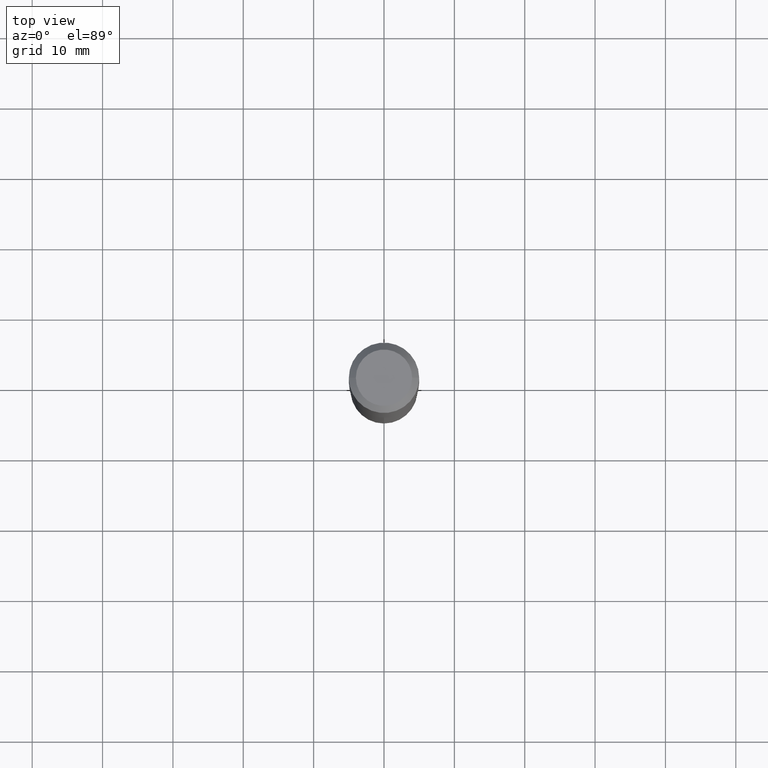
[diagram: clean part render]
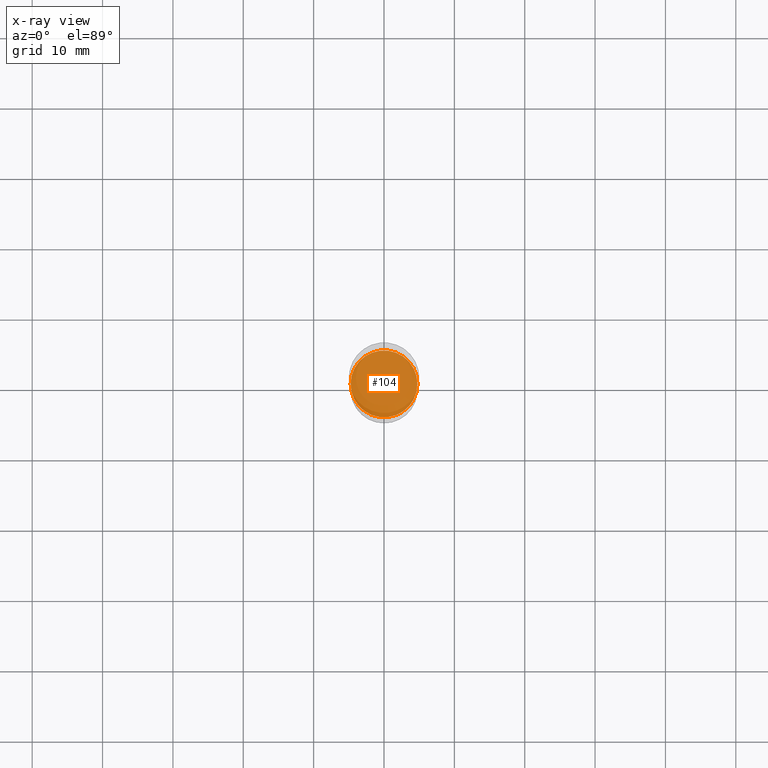
[diagram: x-ray — body ghosted, one internal face saturated and labeled with its STEP entity id]
A machine part, top view, then the same camera in x-ray: the body is ghosted and one INTERNAL B-rep face — a face not visible from any outside direction — is saturated and labeled: STEP entity #104.
In plain terms, the highlighted planar face has unit normal (-0, 0, 1).
Its self-contained STEP definition (entity closure, byte-faithful):
#1 = CARTESIAN_POINT ( 'NONE',  ( 4.959410738943456624E-29, -7.080724155173898521E-15, -2.027999999999999581 ) ) ;
#6 = EDGE_CURVE ( 'NONE', #209, #385, #403, .T. ) ;
#13 = CARTESIAN_POINT ( 'NONE',  ( 2.890591265467325299E-29, -1.004339139108359101E-14, -2.027999999999999581 ) ) ;
#25 = CARTESIAN_POINT ( 'NONE',  ( 4.959410738943456624E-29, -7.080724155173898521E-15, -2.027999999999999581 ) ) ;
#52 = PLANE ( 'NONE',  #71 ) ;
#55 = DIRECTION ( 'NONE',  ( -2.445468806185136597E-29, 3.491481338843145583E-15, 1.000000000000000000 ) ) ;
#71 = AXIS2_PLACEMENT_3D ( 'NONE', #13, #246, #317 ) ;
#99 = EDGE_LOOP ( 'NONE', ( #327, #287 ) ) ;
#104 = ADVANCED_FACE ( 'NONE', ( #120 ), #52, .F. ) ;
#120 = FACE_OUTER_BOUND ( 'NONE', #99, .T. ) ;
#132 = EDGE_CURVE ( 'NONE', #385, #209, #488, .T. ) ;
#183 = AXIS2_PLACEMENT_3D ( 'NONE', #25, #55, #202 ) ;
#202 = DIRECTION ( 'NONE',  ( 1.000000000000000000, -6.982962677686265133E-15, 0.000000000000000000 ) ) ;
#209 = VERTEX_POINT ( 'NONE', #413 ) ;
#246 = DIRECTION ( 'NONE',  ( -2.438088387897960049E-29, 3.491481338843145188E-15, 1.000000000000000000 ) ) ;
#267 = DIRECTION ( 'NONE',  ( 1.000000000000000000, -6.982962677686265133E-15, 0.000000000000000000 ) ) ;
#287 = ORIENTED_EDGE ( 'NONE', *, *, #132, .F. ) ;
#317 = DIRECTION ( 'NONE',  ( 1.000000000000000000, -6.982962677686265922E-15, 4.876176775795935793E-29 ) ) ;
#327 = ORIENTED_EDGE ( 'NONE', *, *, #6, .F. ) ;
#385 = VERTEX_POINT ( 'NONE', #461 ) ;
#403 = CIRCLE ( 'NONE', #432, 0.1869999999999999996 ) ;
#413 = CARTESIAN_POINT ( 'NONE',  ( 0.1869999999999999996, -8.386538175901229733E-15, -2.027999999999999581 ) ) ;
#414 = DIRECTION ( 'NONE',  ( -2.445468806185136597E-29, 3.491481338843145583E-15, 1.000000000000000000 ) ) ;
#432 = AXIS2_PLACEMENT_3D ( 'NONE', #1, #414, #267 ) ;
#461 = CARTESIAN_POINT ( 'NONE',  ( -0.1869999999999999996, -5.749360012128399581E-15, -2.027999999999999581 ) ) ;
#488 = CIRCLE ( 'NONE', #183, 0.1869999999999999996 ) ;